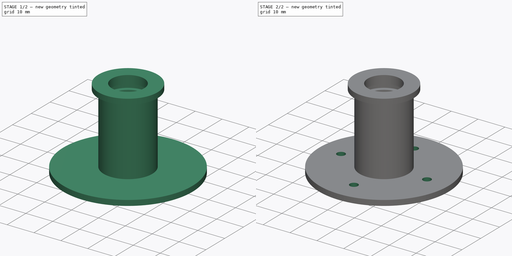
[diagram: build sequence overview — one tinted view per stage of 2, left to right]
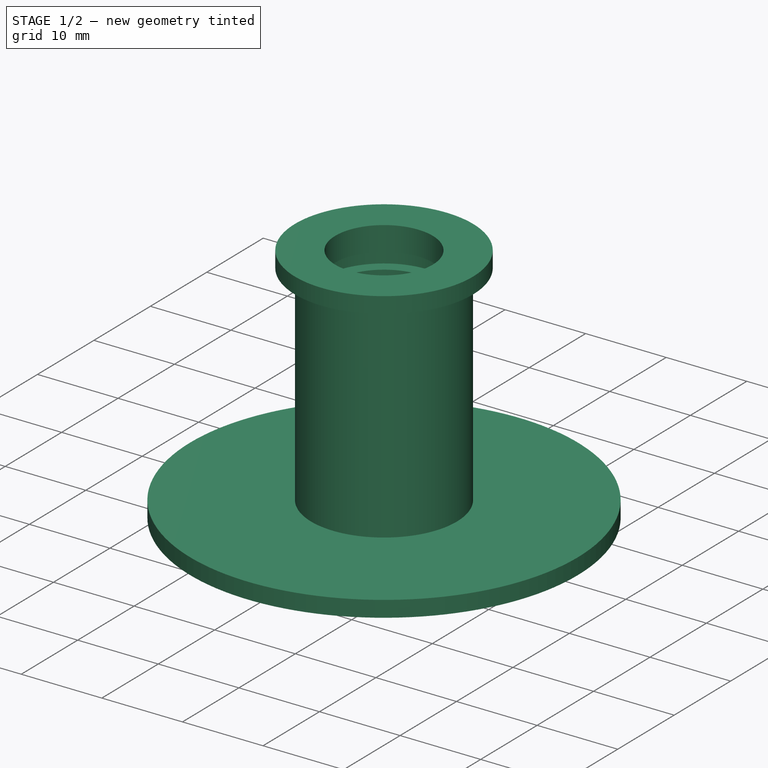
[diagram: stage 1 of 2 — iso view after this stage's code; geometry added in this stage tinted green]
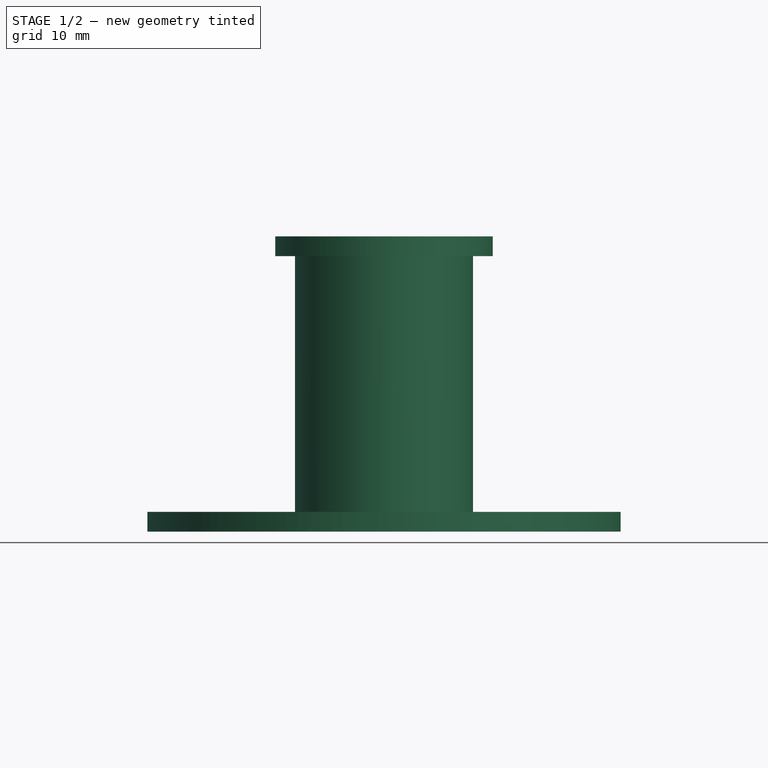
[diagram: stage 1 of 2 — front view after this stage's code; geometry added in this stage tinted green]
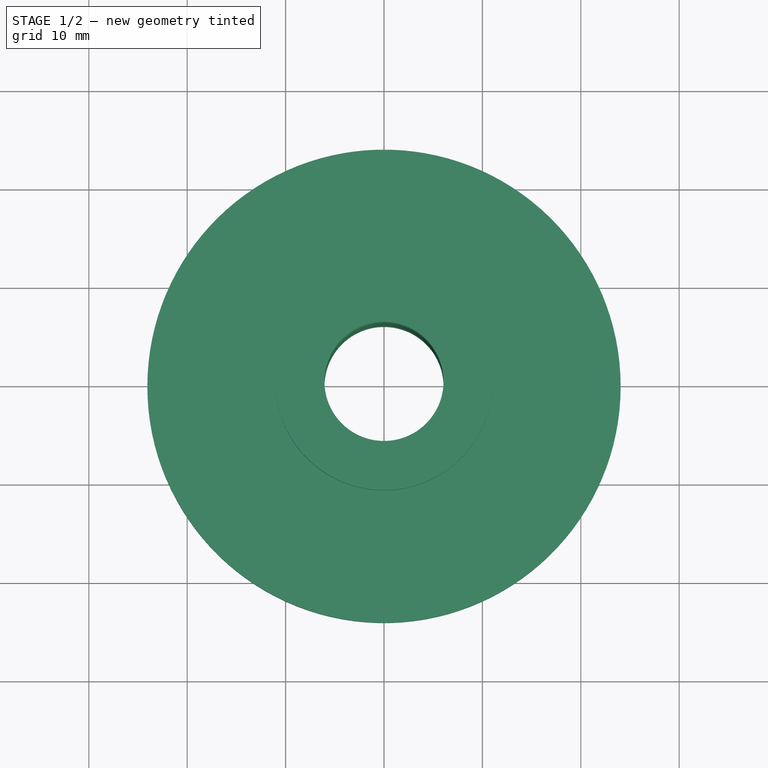
[diagram: stage 1 of 2 — top view after this stage's code; geometry added in this stage tinted green]
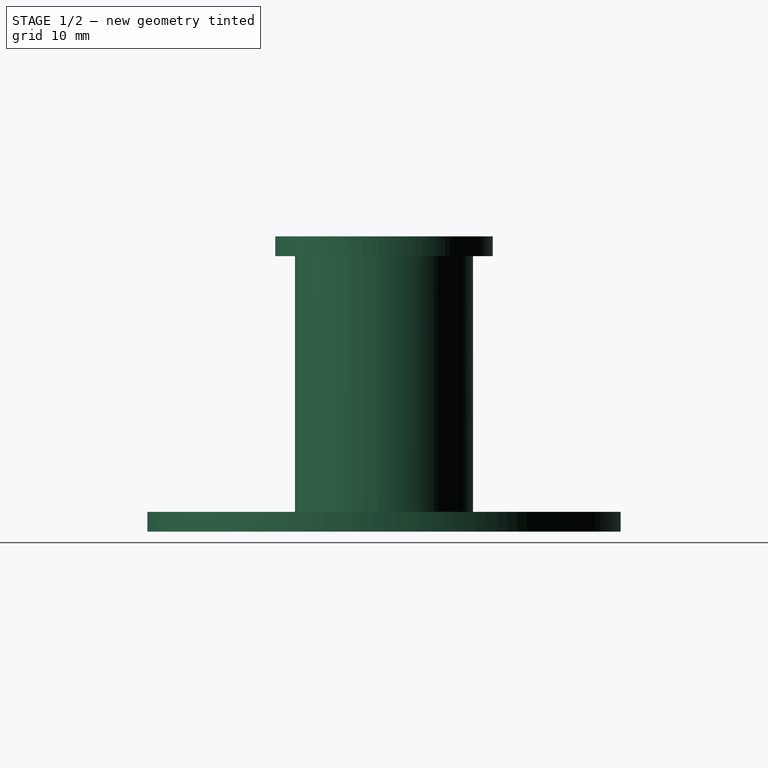
[diagram: stage 1 of 2 — right view after this stage's code; geometry added in this stage tinted green]
FCSTD DOCUMENT  (FreeCAD 1.0R39285 (Git))
Label: CINAC_Cap_Port
License: All rights reserved
LicenseURL: https://en.wikipedia.org/wiki/All_rights_reserved
objects: Sketcher::SketchObject×2, PartDesign::Revolution×1, PartDesign::Pocket×1, PartDesign::Body×1
note: 11 computed .brp shape members not serialized (recipe doc carries the construction recipe); baked Part::Feature solids carry a one-line shape summary decoded from their .brp

FEATURE [Sketcher::SketchObject] Sketch
  ArcFitTolerance = 1e-06
  AttachmentSupport = -> [XZ_Plane]
  FullyConstrained = true
  MakeInternals = false
  MapMode = 5
  Placement = pos=(0,0,0) rot=(1,0,0;1.5708rad)
  sketch-geometry (16):
    g0: LineSegment StartX=-6.05 StartY=0 StartZ=0 EndX=-24.05 EndY=0 EndZ=0
    g1: LineSegment StartX=-24.05 StartY=0 StartZ=0 EndX=-24.05 EndY=2 EndZ=0
    g2: LineSegment StartX=-24.05 StartY=2 StartZ=0 EndX=-9.05 EndY=2 EndZ=0
    g3: LineSegment StartX=-9.05 StartY=2 StartZ=0 EndX=-9.05 EndY=28 EndZ=0
    g4: LineSegment StartX=-9.05 StartY=28 StartZ=0 EndX=-11.05 EndY=28 EndZ=0
    g5: LineSegment StartX=-11.05 StartY=28 StartZ=0 EndX=-11.05 EndY=30 EndZ=0
    g6: LineSegment StartX=-11.05 StartY=30 StartZ=0 EndX=-6.05 EndY=30 EndZ=0
    g7: LineSegment StartX=-6.05 StartY=30 StartZ=0 EndX=-6.05 EndY=27 EndZ=0
    g8: LineSegment StartX=-6.05 StartY=27 StartZ=0 EndX=-7.55 EndY=27 EndZ=0
    g9: LineSegment StartX=-7.55 StartY=27 StartZ=0 EndX=-7.55 EndY=25 EndZ=0
    g10: LineSegment StartX=-7.55 StartY=25 StartZ=0 EndX=-6.05 EndY=25 EndZ=0
    g11: LineSegment StartX=-6.05 StartY=25 StartZ=0 EndX=-6.05 EndY=4 EndZ=0
    g12: LineSegment StartX=-6.05 StartY=4 StartZ=0 EndX=-7.55 EndY=4 EndZ=0
    g13: LineSegment StartX=-7.55 StartY=4 StartZ=0 EndX=-7.55 EndY=2 EndZ=0
    g14: LineSegment StartX=-7.55 StartY=2 StartZ=0 EndX=-6.05 EndY=2 EndZ=0
    g15: LineSegment StartX=-6.05 StartY=2 StartZ=0 EndX=-6.05 EndY=0 EndZ=0
  constraints (48):
    c: PointOnObject(g0,g-1)
    c: PointOnObject(g0,g-1)
    c: Vertical(g1)
    c: Coincident(g1,g2)
    c: Horizontal(g2)
    c: Coincident(g2,g3)
    c: Vertical(g3)
    c: Coincident(g3,g4)
    c: Horizontal(g4)
    c: Coincident(g4,g5)
    c: Coincident(g5,g6)
    c: Horizontal(g6)
    c: Vertical(g5)
    c: DistanceY(g0,g6) = 30
    c: Distance(g5,g5) = 2
    c: Distance(g4,g4) = 2
    c: Distance(g2,g2) = 15
    c: Coincident(g0,g1)
    c: Distance(g1,g1) = 2
    c: Distance(g0,g-1) = 6.05
    c: DistanceX(g2,g0) = 3
    c: Coincident(g6,g7)
    c: Vertical(g7)
    c: Coincident(g7,g8)
    c: Coincident(g8,g9)
    c: Vertical(g9)
    c: Coincident(g9,g10)
    c: Coincident(g10,g11)
    c: Vertical(g11)
    c: Coincident(g11,g12)
    c: Horizontal(g12)
    c: Coincident(g12,g13)
    c: Coincident(g13,g14)
    c: Horizontal(g14)
    c: Coincident(g14,g15)
    c: Coincident(g15,g0)
    c: Vertical(g15)
    c: Vertical(g13)
    c: Horizontal(g10)
    c: Horizontal(g8)
    c: Distance(g10,g10) = 1.5
    c: DistanceY(g9,g9) = 2
    c: Distance(g14,g14) = 1.5
    c: Distance(g13,g13) = 2
    c: DistanceY(g11,g11) = 21
    c: Distance(g7,g7) = 3
    c: DistanceX(g11,g-1) = 6.05
    c: DistanceX(g7,g-1) = 6.05
FEATURE [PartDesign::Revolution] Revolution
  Angle = 360
  Angle2 = 60
  Axis = (0,2e-16,1)
  Base = (0,0,0)
  Placement = pos=(0,0,0) rot=(1,0,0;1.5708rad)
  Profile = -> Sketch
  ReferenceAxis = -> Sketch [V_Axis]
  Refine = true
  Suppressed = false
  Type = 0
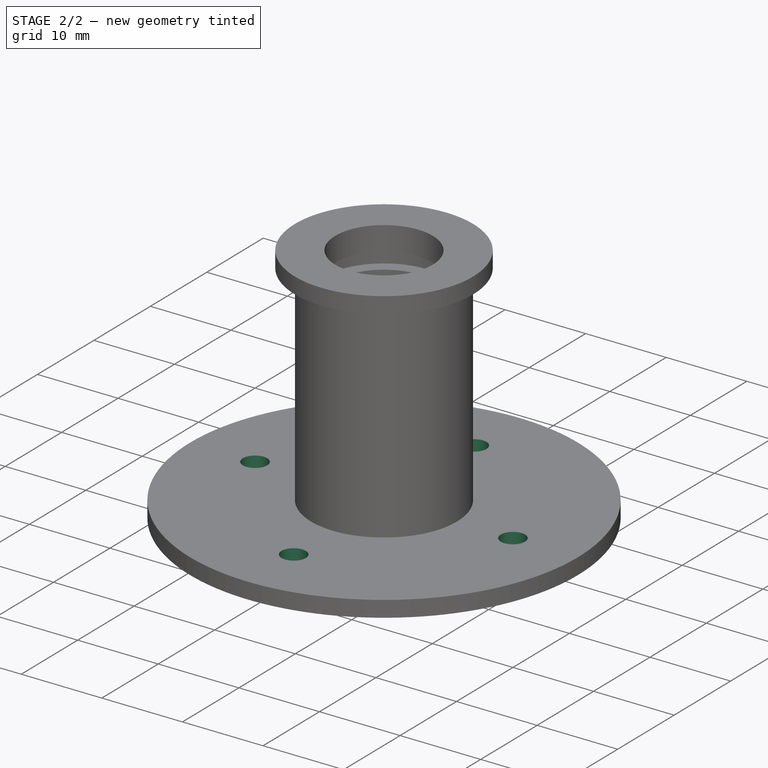
[diagram: stage 2 of 2 — iso view after this stage's code; geometry added in this stage tinted green]
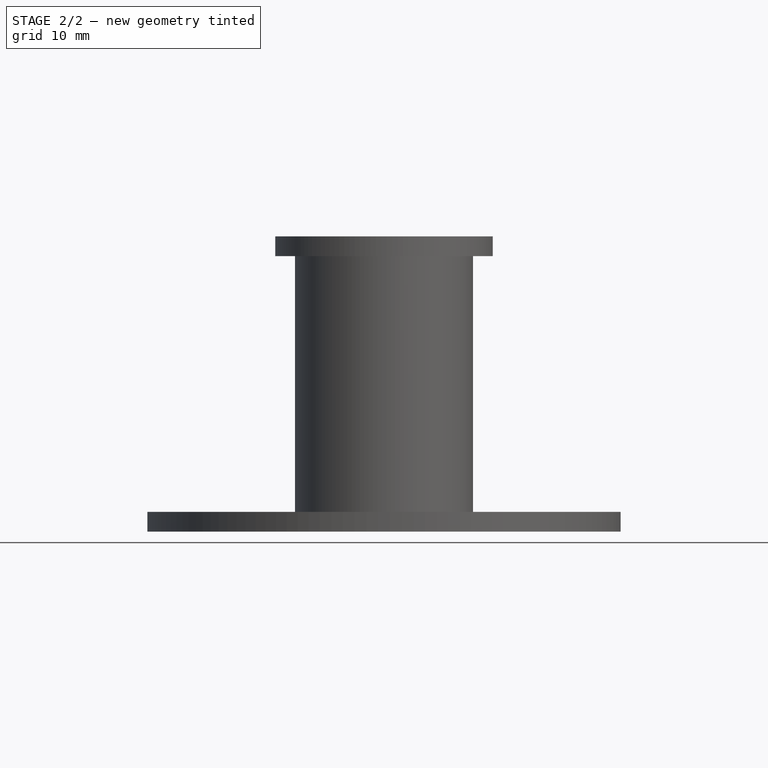
[diagram: stage 2 of 2 — front view after this stage's code; geometry added in this stage tinted green]
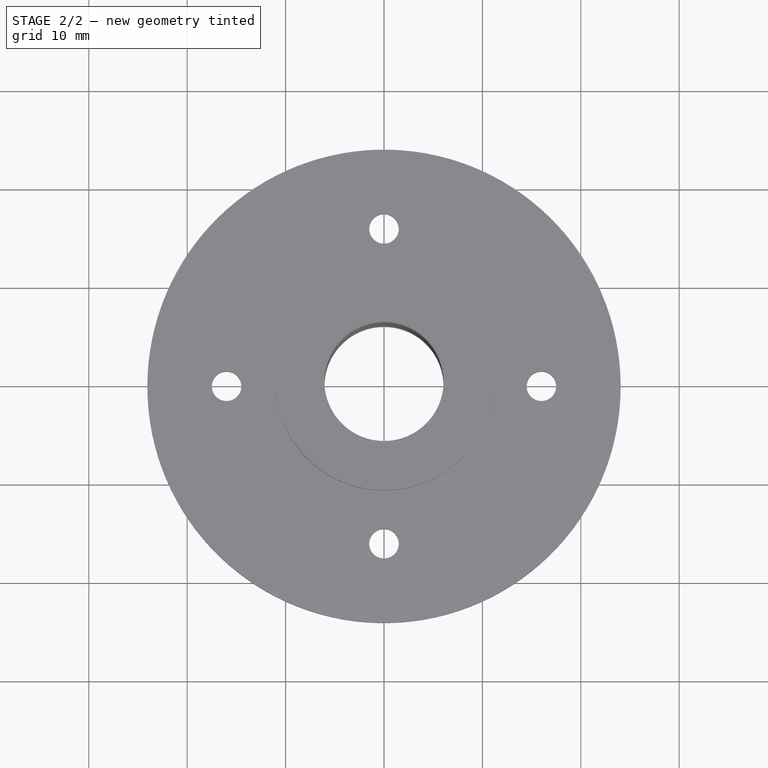
[diagram: stage 2 of 2 — top view after this stage's code; geometry added in this stage tinted green]
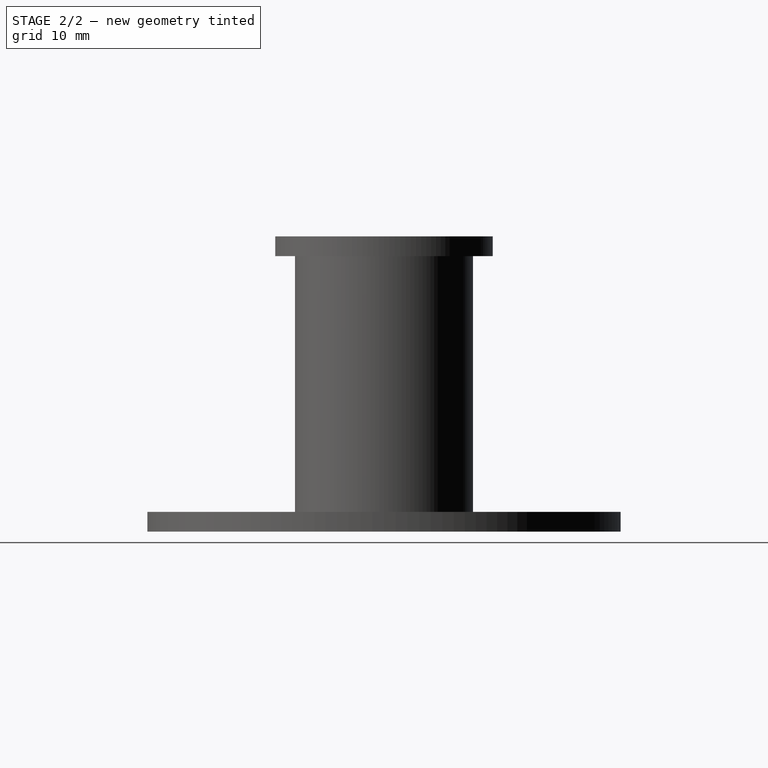
[diagram: stage 2 of 2 — right view after this stage's code; geometry added in this stage tinted green]
FEATURE [Sketcher::SketchObject] Sketch001
  ArcFitTolerance = 1e-06
  AttachmentSupport = -> [Revolution]
  FullyConstrained = true
  MakeInternals = false
  MapMode = 5
  Placement = pos=(0,4e-16,2) rot=(0,0,1;3.14159rad)
  sketch-geometry (4):
    g0: Circle CenterX=0 CenterY=16 CenterZ=0 NormalX=0 NormalY=0 NormalZ=1 AngleXU=0 Radius=1.5
    g1: Circle CenterX=0 CenterY=-16 CenterZ=0 NormalX=0 NormalY=0 NormalZ=1 AngleXU=0 Radius=1.5
    g2: Circle CenterX=16 CenterY=0 CenterZ=0 NormalX=0 NormalY=0 NormalZ=1 AngleXU=0 Radius=1.5
    g3: Circle CenterX=-16 CenterY=0 CenterZ=0 NormalX=0 NormalY=0 NormalZ=1 AngleXU=0 Radius=1.5
  constraints (10):
    c: Diameter(g0) = 3
    c: PointOnObject(g0,g-2)
    c: PointOnObject(g2,g-1)
    c: Equal(g0,g2)
    c: Equal(g2,g1)
    c: Equal(g1,g3)
    c: Distance(g0,g-1) = 16
    c: Symmetric(g0,g1,g-1)
    c: Distance(g3,g-1) = 16
    c: Symmetric(g3,g2,g-1)
FEATURE [PartDesign::Pocket] Pocket
  BaseFeature = -> Revolution
  Direction = (0,0,-1)
  Length = 5
  Length2 = 5
  Placement = pos=(0,0,0) rot=(1,0,0;1.5708rad)
  Profile = -> Sketch001
  ReferenceAxis = -> Sketch001 [N_Axis]
  Refine = true
  Suppressed = false
  Type = 1
FEATURE [PartDesign::Body] Body
  AllowCompound = false
  Group = -> [Sketch,Revolution,Sketch001,Pocket]
  Origin = -> Origin
  Tip = -> Pocket
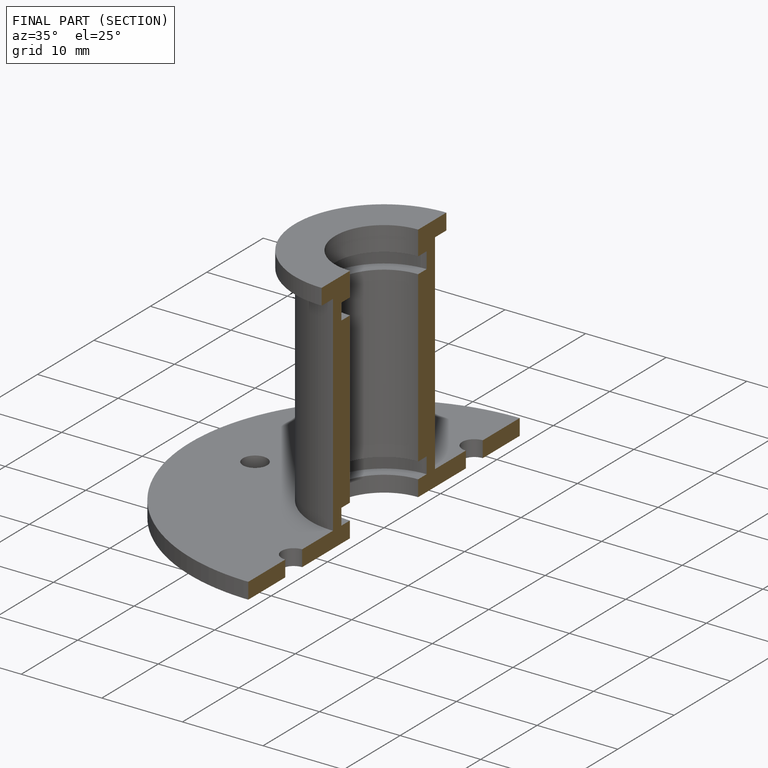
[diagram: finished part — half-section view (interior)]
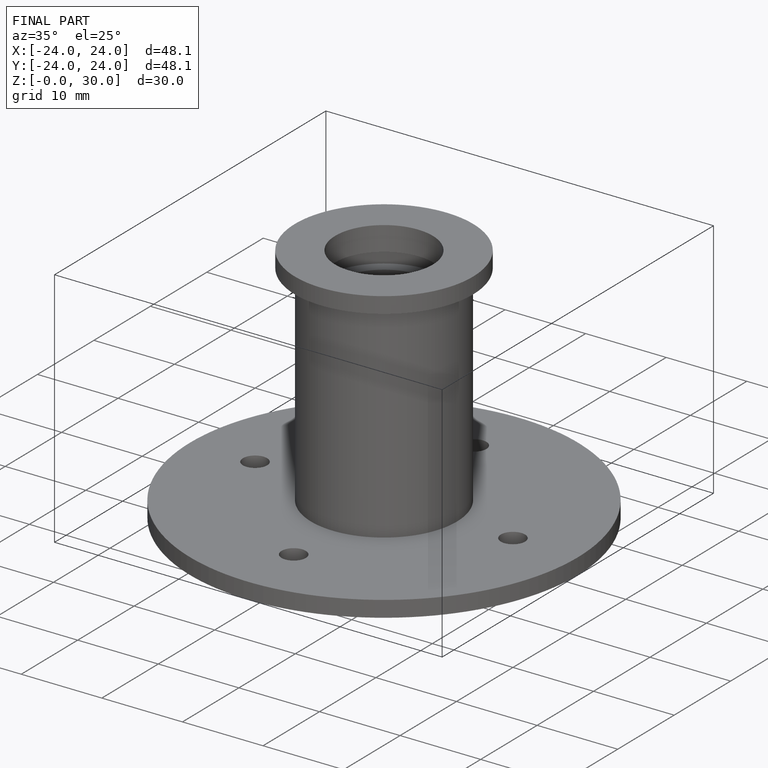
[diagram: finished part — iso view with bounding-box wireframe]
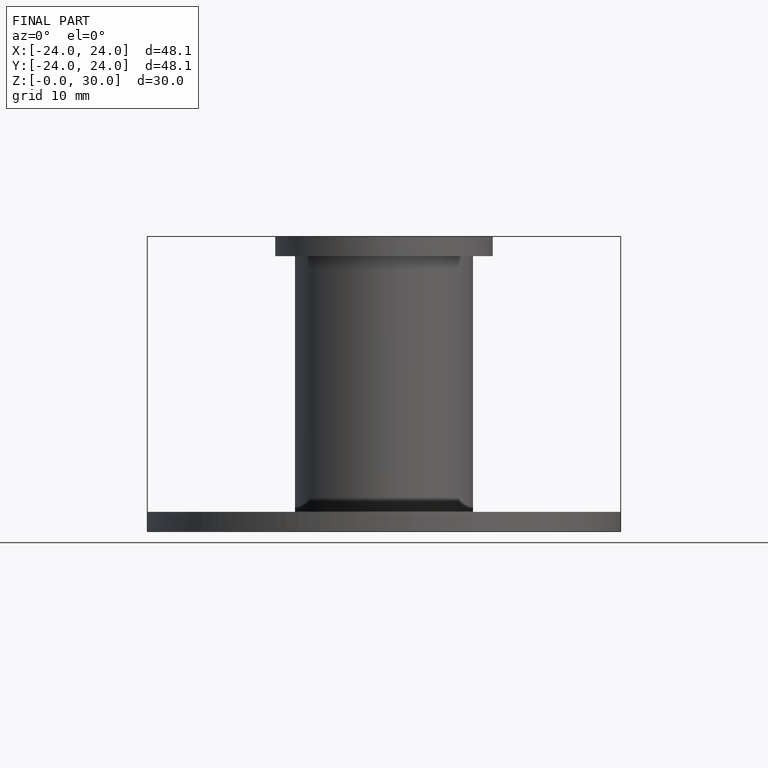
[diagram: finished part — front view with bounding-box wireframe]
